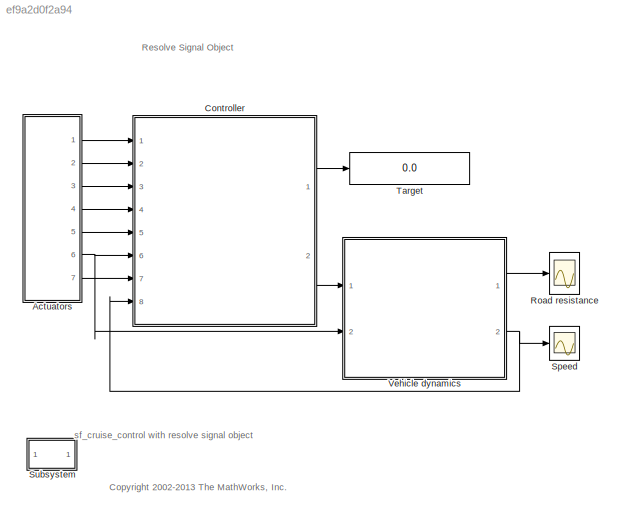
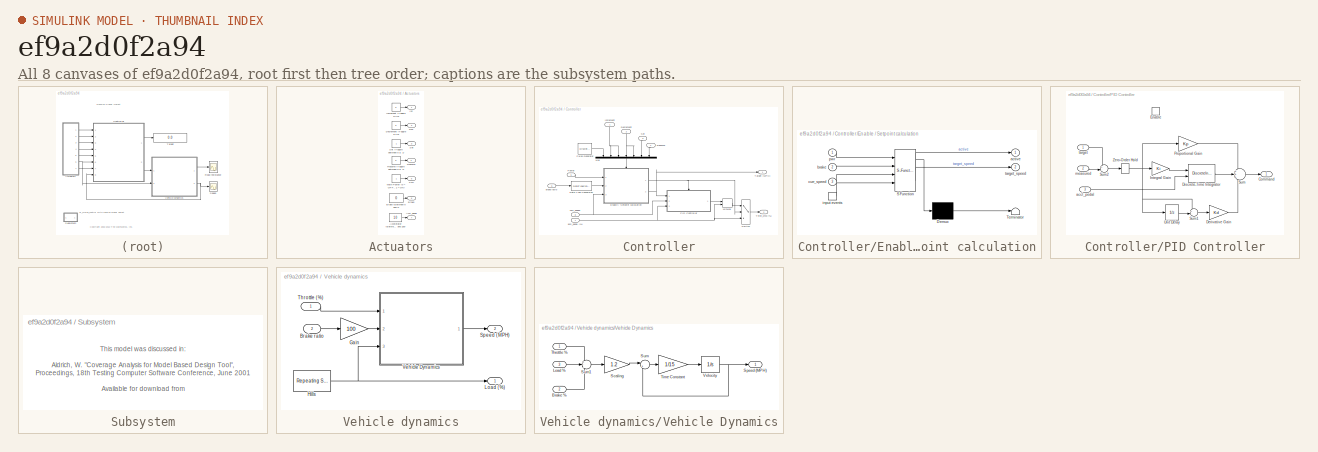
[diagram: thumbnail index - all 8 canvases of the model, root first then tree order]
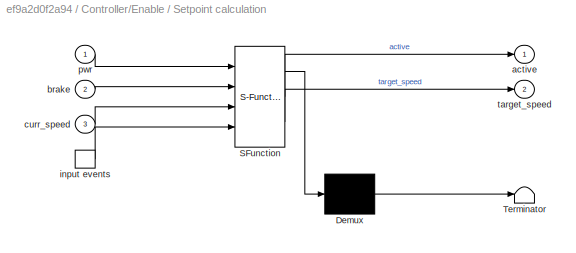
MODEL slx_ef9a2d0f2a94
KIND model
CONFIG AbsTol = auto
CONFIG EnableMultiTasking = off
CONFIG FixedStep = 0.005
CONFIG MaxStep = auto
CONFIG MinStep = auto
CONFIG RelTol = 1e-3
CONFIG SampleTimeConstraint = Unconstrained
CONFIG Solver = ode5
CONFIG SolverName = ode5
CONFIG StartTime = 0.0
CONFIG StopTime = inf
WORKSPACE source: MATLAB code (in-file)
WORKSPACE Kd = 30
WORKSPACE Ki = 10
WORKSPACE Kp = 30
WORKSPACE set_speed = Simulink.Signal
WORKSPACE code: set_speed.DataType = 'double';
WORKSPACE code: set_speed.Dimensions = 1;
WORKSPACE target_speed = Simulink.Signal
WORKSPACE code: target_speed.DataType = 'double';
WORKSPACE code: target_speed.Dimensions = 1;
BLOCK [SubSystem] Actuators
  Ports = [0, 7]
  RequestExecContextInheritance = off
  Variant = off
BLOCK [Constant] Actuators/Accelerator (Between 0 and 100)
  Value = 10
BLOCK [Outport] Actuators/Accl_pedal
  IconDisplay = Port number
  Port = 7
BLOCK [Outport] Actuators/Brake
  IconDisplay = Port number
  Port = 6
BLOCK [Constant] Actuators/Brake (Between 0 and 1)
  Value = 0
BLOCK [Outport] Actuators/Dec
  IconDisplay = Port number
  Port = 2
BLOCK [Constant] Actuators/Decrement (Toggle 0-1-0)
  Value = 0
BLOCK [Outport] Actuators/Inc
  IconDisplay = Port number
BLOCK [Constant] Actuators/Increment (Toggle 0-1-0)
  Value = 0
BLOCK [Constant] Actuators/Main Power (0 = OFF, 1 = ON)
  OutDataTypeStr = boolean
BLOCK [Outport] Actuators/Pwr
  IconDisplay = Port number
  Port = 5
BLOCK [Outport] Actuators/Resume
  IconDisplay = Port number
  Port = 4
BLOCK [Constant] Actuators/Resume (Toggle between 0 & 1)
  Value = 0
BLOCK [Outport] Actuators/Set
  IconDisplay = Port number
  Port = 3
BLOCK [Constant] Actuators/Set (Toggle between 0 & 1)
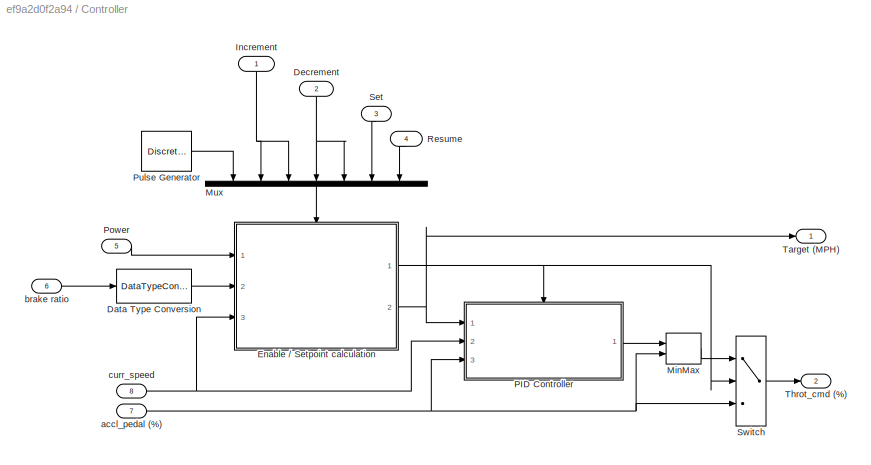
BLOCK [SubSystem] Controller
  Ports = [8, 2]
  RequestExecContextInheritance = off
  Variant = off
BLOCK [DataTypeConversion] Controller/Data Type Conversion
  OutDataTypeStr = boolean
  RndMeth = Floor
  SaturateOnIntegerOverflow = off
BLOCK [Inport] Controller/Decrement
  IconDisplay = Port number
  Port = 2
BLOCK [SubSystem] Controller/Enable // Setpoint calculation
  ErrorFcn = Stateflow.Translate.translate
  PermitHierarchicalResolution = ExplicitOnly
  Ports = [3, 2, 0, 1]
  RequestExecContextInheritance = off
  SFBlockType = Chart
  TreatAsAtomicUnit = on
  Variant = off
BLOCK [Demux] Controller/Enable // Setpoint calculation/ Demux 
  Outputs = 1
  Ports = [1, 1]
BLOCK [S-Function] Controller/Enable // Setpoint calculation/ SFunction 
  EnableBusSupport = off
  FunctionName = sf_sfun
  PortCounts = [4 3]
  Ports = [4, 3]
  SFcnIsStateOwnerBlock = off
  SFunctionDeploymentMode = off
  Tag = Stateflow S-Function sf_cruise_control 1
BLOCK [Terminator] Controller/Enable // Setpoint calculation/ Terminator 
BLOCK [Outport] Controller/Enable // Setpoint calculation/ active
  IconDisplay = Port number
BLOCK [TriggerPort] Controller/Enable // Setpoint calculation/ input events 
  Ports = [0, 1]
  ShowOutputPort = on
  TriggerType = either
  VariantControl = (inherit)
  ZeroCross = off
BLOCK [Inport] Controller/Enable // Setpoint calculation/brake
  IconDisplay = Port number
  Port = 2
BLOCK [Inport] Controller/Enable // Setpoint calculation/curr_speed
  IconDisplay = Port number
  Port = 3
BLOCK [Inport] Controller/Enable // Setpoint calculation/pwr
  IconDisplay = Port number
BLOCK [Outport] Controller/Enable // Setpoint calculation/target_speed
  IconDisplay = Port number
  Port = 2
BLOCK [Inport] Controller/Increment
  IconDisplay = Port number
BLOCK [MinMax] Controller/MinMax
  Function = max
  Inputs = 2
  Ports = [2, 1]
  ZeroCross = off
BLOCK [Mux] Controller/Mux
  DisplayOption = bar
  Inputs = 7
  Ports = [7, 1]
BLOCK [SubSystem] Controller/PID Controller
  Ports = [3, 1, 1]
  RequestExecContextInheritance = off
  TreatAsAtomicUnit = on
  Variant = off
BLOCK [Outport] Controller/PID Controller/Command
  IconDisplay = Port number
BLOCK [Gain] Controller/PID Controller/Derivative Gain
  Gain = Kd
BLOCK [DiscreteIntegrator] Controller/PID Controller/Discrete-Time Integrator
  ICPrevOutput = DiscIntNeverNeededParam
  ICPrevScaledInput = DiscIntNeverNeededParam
  InitialConditionSource = external
  LowerSaturationLimit = -20
  Ports = [2, 1]
  SampleTime = 0.1
  UpperSaturationLimit = 20
BLOCK [EnablePort] Controller/PID Controller/Enable
  Ports = []
  StatesWhenEnabling = reset
  ZeroCross = off
BLOCK [Gain] Controller/PID Controller/Integral Gain
  Gain = Ki
BLOCK [Gain] Controller/PID Controller/Proportional Gain
  Gain = Kp
BLOCK [Sum] Controller/PID Controller/Sum
  IconShape = round
  Inputs = +++
  Ports = [3, 1]
BLOCK [Sum] Controller/PID Controller/Sum1
  IconShape = round
  Inputs = +-|
  Ports = [2, 1]
BLOCK [Sum] Controller/PID Controller/Sum2
  IconShape = round
  Inputs = +-|
  Ports = [2, 1]
BLOCK [UnitDelay] Controller/PID Controller/Unit Delay
  SampleTime = 0.1
BLOCK [ZeroOrderHold] Controller/PID Controller/Zero-Order Hold
  SampleTime = 0.1
BLOCK [Inport] Controller/PID Controller/accl_pedal
  IconDisplay = Port number
  Port = 3
BLOCK [Inport] Controller/PID Controller/measured
  IconDisplay = Port number
  Port = 2
BLOCK [Inport] Controller/PID Controller/target
  IconDisplay = Port number
BLOCK [Inport] Controller/Power
  IconDisplay = Port number
  Port = 5
BLOCK [DiscretePulseGenerator] Controller/Pulse Generator
  Ports = [0, 1]
  SampleTime = .05
BLOCK [Inport] Controller/Resume
  IconDisplay = Port number
  Port = 4
BLOCK [Inport] Controller/Set
  IconDisplay = Port number
  Port = 3
BLOCK [Switch] Controller/Switch
  SaturateOnIntegerOverflow = off
  Threshold = 1
  ZeroCross = off
BLOCK [Outport] Controller/Target (MPH)
  IconDisplay = Port number
BLOCK [Outport] Controller/Throt_cmd (%)
  IconDisplay = Port number
  Port = 2
BLOCK [Inport] Controller/accl_pedal (%)
  IconDisplay = Port number
  Port = 7
BLOCK [Inport] Controller/brake ratio
  IconDisplay = Port number
  Port = 6
BLOCK [Inport] Controller/curr_speed
  IconDisplay = Port number
  Port = 8
BLOCK [Scope] Road resistance
  NumInputPorts = 1
  Ports = [1]
  ScopeSpecificationString = Simulink.scopes.TimeScopeBlockCfg('CurrentConfiguration', extmgr.ConfigurationSet(extmgr.Configuration('Core','General UI',true),extmgr.Configuration('Core','Source UI',true),extmgr.Configuration('Sources','WiredSimulink',true,'DataLoggingSaveFormat','StructureWithTime','SampleTime','0.5','DataLoggingLimitDataPoints',true,'DataLoggingDecimation','1'),extmgr.Configuration('Visuals','Time Domain',tr...<+1743ch>
BLOCK [Scope] Speed
  NumInputPorts = 1
  Ports = [1]
  ScopeSpecificationString = Simulink.scopes.TimeScopeBlockCfg('CurrentConfiguration', extmgr.ConfigurationSet(extmgr.Configuration('Core','General UI',true),extmgr.Configuration('Core','Source UI',true),extmgr.Configuration('Sources','WiredSimulink',true,'DataLoggingVariableName','ScopeData1','DataLoggingSaveFormat','StructureWithTime','SampleTime','0.5','DataLoggingLimitDataPoints',true,'DataLoggingDecimation','1'),extmgr.C...<+1807ch>
BLOCK [SubSystem] Subsystem
  Ports = []
  RequestExecContextInheritance = off
  Variant = off
BLOCK [Display] Target
  Decimation = 1
  Ports = [1]
BLOCK [SubSystem] Vehicle dynamics
  Ports = [2, 2]
  RequestExecContextInheritance = off
  Variant = off
BLOCK [Inport] Vehicle dynamics/Brake ratio
  IconDisplay = Port number
  Port = 2
BLOCK [Gain] Vehicle dynamics/Gain
  Gain = 100
BLOCK [Reference] Vehicle dynamics/Hills  REF=simulink/Sources/Repeating
Sequence
  Ports = [0, 1]
  SourceBlock = simulink/Sources/Repeating\nSequence
  SourceProductBaseCode = SL
  SourceProductName = Simulink
  SourceType = Repeating table
BLOCK [Outport] Vehicle dynamics/Load (%)
  IconDisplay = Port number
BLOCK [Outport] Vehicle dynamics/Speed (MPH)
  IconDisplay = Port number
  Port = 2
BLOCK [Inport] Vehicle dynamics/Throttle (%)
  IconDisplay = Port number
BLOCK [SubSystem] Vehicle dynamics/Vehicle Dynamics
  Ports = [3, 1]
  RequestExecContextInheritance = off
  Variant = off
BLOCK [Inport] Vehicle dynamics/Vehicle Dynamics/Brake %
  IconDisplay = Port number
  Port = 2
BLOCK [Inport] Vehicle dynamics/Vehicle Dynamics/Load %
  IconDisplay = Port number
  Port = 3
BLOCK [Gain] Vehicle dynamics/Vehicle Dynamics/Scaling
  Gain = 1.2
BLOCK [Outport] Vehicle dynamics/Vehicle Dynamics/Speed (MPH)
  IconDisplay = Port number
BLOCK [Sum] Vehicle dynamics/Vehicle Dynamics/Sum
  IconShape = round
  Inputs = |+-
  Ports = [2, 1]
BLOCK [Sum] Vehicle dynamics/Vehicle Dynamics/Sum1
  IconShape = round
  Inputs = +--
  Ports = [3, 1]
BLOCK [Inport] Vehicle dynamics/Vehicle Dynamics/Throttle %
  IconDisplay = Port number
BLOCK [Gain] Vehicle dynamics/Vehicle Dynamics/Time Constant
  Gain = 1/15
BLOCK [Integrator] Vehicle dynamics/Vehicle Dynamics/Velocity
  LimitOutput = on
  LowerSaturationLimit = 0
  Ports = [1, 1]
  ZeroCross = off
ANNOTATION (root): <copyright redacted>
ANNOTATION (root): Resolve Signal Object
ANNOTATION (root): sf_cruise_control with resolve signal object
ANNOTATION Subsystem: This model was discussed in: Aldrich, W. "Coverage Analysis for Model Based Design Tool", Proceedings, 18th Testing Computer Software Conference, June 2001 Available for download from http://www.mathworks.com/products/simulink/technicalliterature.shtml
LINE Actuators/Accelerator (Between 0 and 100):1 -> Actuators/Accl_pedal:1
LINE Actuators/Brake (Between 0 and 1):1 -> Actuators/Brake:1
LINE Actuators/Decrement (Toggle 0-1-0):1 -> Actuators/Dec:1
LINE Actuators/Increment (Toggle 0-1-0):1 -> Actuators/Inc:1
LINE Actuators/Main Power (0 = OFF, 1 = ON):1 -> Actuators/Pwr:1
LINE Actuators/Resume (Toggle between 0 & 1):1 -> Actuators/Resume:1
LINE Actuators/Set (Toggle between 0 & 1):1 -> Actuators/Set:1
LINE Actuators:1 -> Controller:1
LINE Actuators:2 -> Controller:2
LINE Actuators:3 -> Controller:3
LINE Actuators:4 -> Controller:4
LINE Actuators:5 -> Controller:5
NET Actuators:6 -> Controller:6, Vehicle dynamics:2
LINE Actuators:7 -> Controller:7
LINE Controller/Data Type Conversion:1 -> Controller/Enable // Setpoint calculation:2
NET Controller/Decrement:1 -> Controller/Mux:4, Controller/Mux:5
NET Controller/Enable // Setpoint calculation:1 -> Controller/PID Controller:enable, Controller/Switch:2
NET Controller/Enable // Setpoint calculation:2 -> Controller/PID Controller:1, Controller/Target (MPH):1
NET Controller/Increment:1 -> Controller/Mux:2, Controller/Mux:3
LINE Controller/MinMax:1 -> Controller/Switch:1
LINE Controller/Mux:1 -> Controller/Enable // Setpoint calculation:trigger
LINE Controller/PID Controller/Derivative Gain:1 -> Controller/PID Controller/Sum:3
LINE Controller/PID Controller/Discrete-Time Integrator:1 -> Controller/PID Controller/Sum:2
LINE Controller/PID Controller/Integral Gain:1 -> Controller/PID Controller/Discrete-Time Integrator:1
LINE Controller/PID Controller/Proportional Gain:1 -> Controller/PID Controller/Sum:1
LINE Controller/PID Controller/Sum1:1 -> Controller/PID Controller/Derivative Gain:1
LINE Controller/PID Controller/Sum2:1 -> Controller/PID Controller/Zero-Order Hold:1
LINE Controller/PID Controller/Sum:1 -> Controller/PID Controller/Command:1
LINE Controller/PID Controller/Unit Delay:1 -> Controller/PID Controller/Sum1:2
NET Controller/PID Controller/Zero-Order Hold:1 -> Controller/PID Controller/Integral Gain:1, Controller/PID Controller/Proportional Gain:1, Controller/PID Controller/Sum1:1, Controller/PID Controller/Unit Delay:1
LINE Controller/PID Controller/accl_pedal:1 -> Controller/PID Controller/Discrete-Time Integrator:2
LINE Controller/PID Controller/measured:1 -> Controller/PID Controller/Sum2:2
LINE Controller/PID Controller/target:1 -> Controller/PID Controller/Sum2:1
LINE Controller/PID Controller:1 -> Controller/MinMax:1
LINE Controller/Power:1 -> Controller/Enable // Setpoint calculation:1
LINE Controller/Pulse Generator:1 -> Controller/Mux:1
LINE Controller/Resume:1 -> Controller/Mux:7
LINE Controller/Set:1 -> Controller/Mux:6
LINE Controller/Switch:1 -> Controller/Throt_cmd (%):1
NET Controller/accl_pedal (%):1 -> Controller/MinMax:2, Controller/PID Controller:3, Controller/Switch:3
LINE Controller/brake ratio:1 -> Controller/Data Type Conversion:1
NET Controller/curr_speed:1 -> Controller/Enable // Setpoint calculation:3, Controller/PID Controller:2
LINE Controller:1 -> Target:1
LINE Controller:2 -> Vehicle dynamics:1
LINE Vehicle dynamics/Brake ratio:1 -> Vehicle dynamics/Gain:1
LINE Vehicle dynamics/Gain:1 -> Vehicle dynamics/Vehicle Dynamics:2
NET Vehicle dynamics/Hills:1 -> Vehicle dynamics/Load (%):1, Vehicle dynamics/Vehicle Dynamics:3
LINE Vehicle dynamics/Throttle (%):1 -> Vehicle dynamics/Vehicle Dynamics:1
LINE Vehicle dynamics/Vehicle Dynamics/Brake %:1 -> Vehicle dynamics/Vehicle Dynamics/Sum1:3
LINE Vehicle dynamics/Vehicle Dynamics/Load %:1 -> Vehicle dynamics/Vehicle Dynamics/Sum1:2
LINE Vehicle dynamics/Vehicle Dynamics/Scaling:1 -> Vehicle dynamics/Vehicle Dynamics/Sum:1
LINE Vehicle dynamics/Vehicle Dynamics/Sum1:1 -> Vehicle dynamics/Vehicle Dynamics/Scaling:1
LINE Vehicle dynamics/Vehicle Dynamics/Sum:1 -> Vehicle dynamics/Vehicle Dynamics/Time Constant:1
LINE Vehicle dynamics/Vehicle Dynamics/Throttle %:1 -> Vehicle dynamics/Vehicle Dynamics/Sum1:1
LINE Vehicle dynamics/Vehicle Dynamics/Time Constant:1 -> Vehicle dynamics/Vehicle Dynamics/Velocity:1
NET Vehicle dynamics/Vehicle Dynamics/Velocity:1 -> Vehicle dynamics/Vehicle Dynamics/Speed (MPH):1, Vehicle dynamics/Vehicle Dynamics/Sum:2
LINE Vehicle dynamics/Vehicle Dynamics:1 -> Vehicle dynamics/Speed (MPH):1
LINE Vehicle dynamics:1 -> Road resistance:1
NET Vehicle dynamics:2 -> Controller:8, Speed:1
note: NET lines group one-source signal fan-out (src -> all destinations, sorted); 1:1 wires keep LINE
CHART Controller/Enable / Setpoint calculation states=10 transitions=18
  STATE_LABEL 'Set_Point_Calculation'
  STATE_LABEL 'Decrement\nen: target_speed--;'
  STATE_LABEL 'every(10,Update)\n{target_speed--;}'
  STATE_LABEL 'Increment\nen: target_speed++;'
  STATE_LABEL 'every(10,Update)\n{target_speed++;}'
  STATE_LABEL 'Hold'
  STATE_LABEL 'Resume [pwr]'
  STATE_LABEL 'Set [pwr]\n{\ntarget_speed = curr_speed;\nset_speed = curr_speed;\n}'
  STATE_LABEL '[set_speed > 0]\n\n{target_speed = ...\nset_speed;}'
  STATE_LABEL 'DEC_BU'
  STATE_LABEL 'INC_BU'
  STATE_LABEL 'DEC_BD\n[in(Enable.on.active)]'
  STATE_LABEL 'INC_BD\n[in(Enable.on.active)]'
  STATE_LABEL 'Decrement\nen: target_speed--;'
  STATE_LABEL 'every(10,Update)\n{target_speed--;}'
  STATE_LABEL 'Increment\nen: target_speed++;'
  STATE_LABEL 'every(10,Update)\n{target_speed++;}'
  STATE_LABEL 'Hold'
  STATE_LABEL 'Resume [pwr]'
  STATE_LABEL 'Set [pwr]\n{\ntarget_speed = curr_speed;\nset_speed = curr_speed;\n}'
  STATE_LABEL '[set_speed > 0]\n\n{target_speed = ...\nset_speed;}'
  STATE_LABEL 'Enable'
  STATE_LABEL 'on'
  STATE_LABEL 'overide\ntarget_speed = 0;'
  STATE_LABEL 'no_target'
  STATE_LABEL 'active'
  STATE_LABEL 'Set | Resume'
  STATE_LABEL '[brake]'
  STATE_LABEL 'Set'
  STATE_LABEL 'Off'
  STATE_LABEL '[!pwr]'
  STATE_LABEL '[pwr]'
  STATE_LABEL 'on'
  STATE_LABEL 'overide\ntarget_speed = 0;'
  STATE_LABEL 'no_target'
  STATE_LABEL 'active'
  STATE_LABEL 'Set | Resume'
  STATE_LABEL '[brake]'
  STATE_LABEL 'Set'
  STATE_LABEL 'overide\ntarget_speed = 0;'
